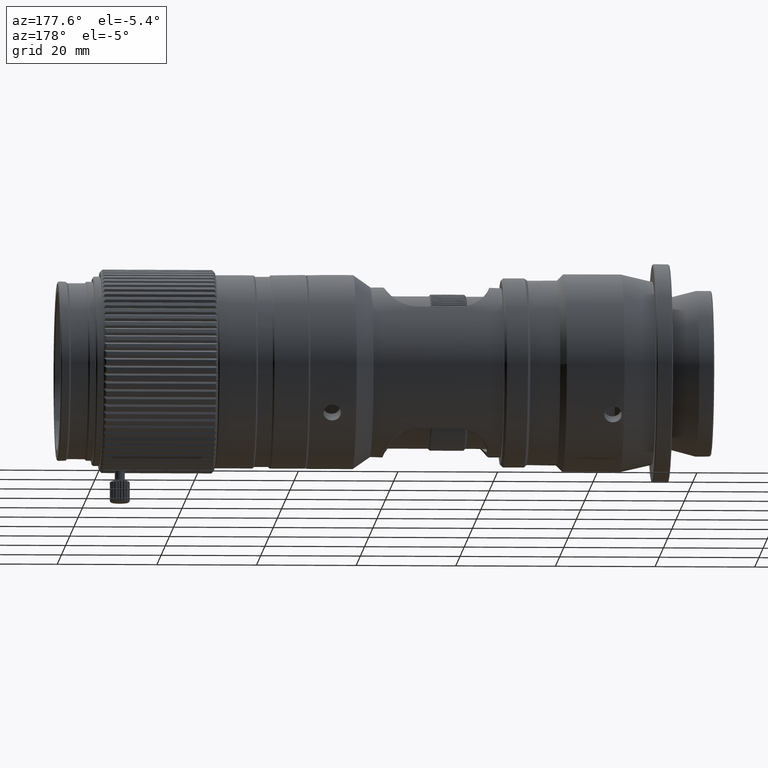
[diagram: clean part render]
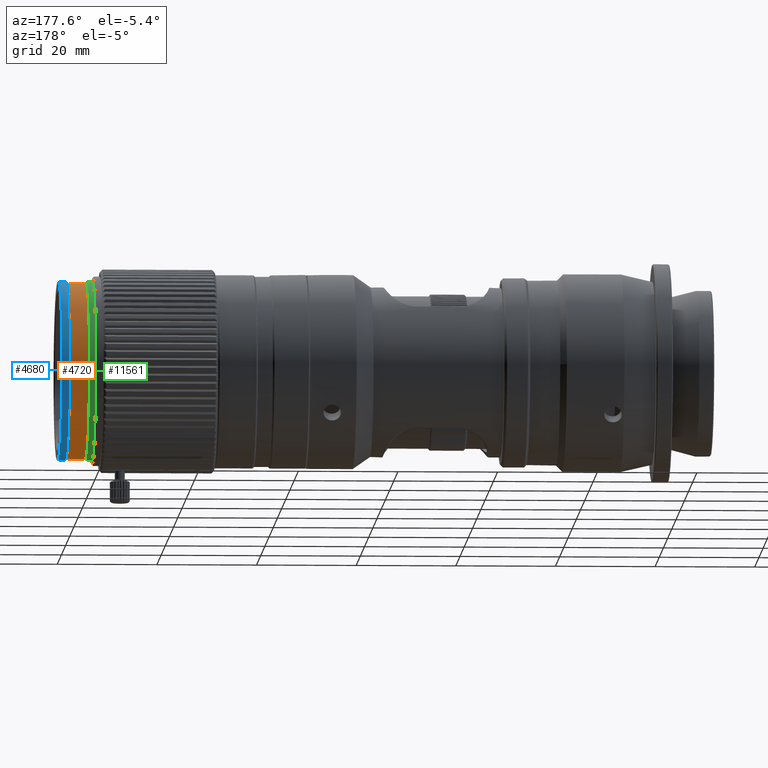
[diagram: same view with three faces highlighted in distinct colors, each labeled with its STEP entity id]
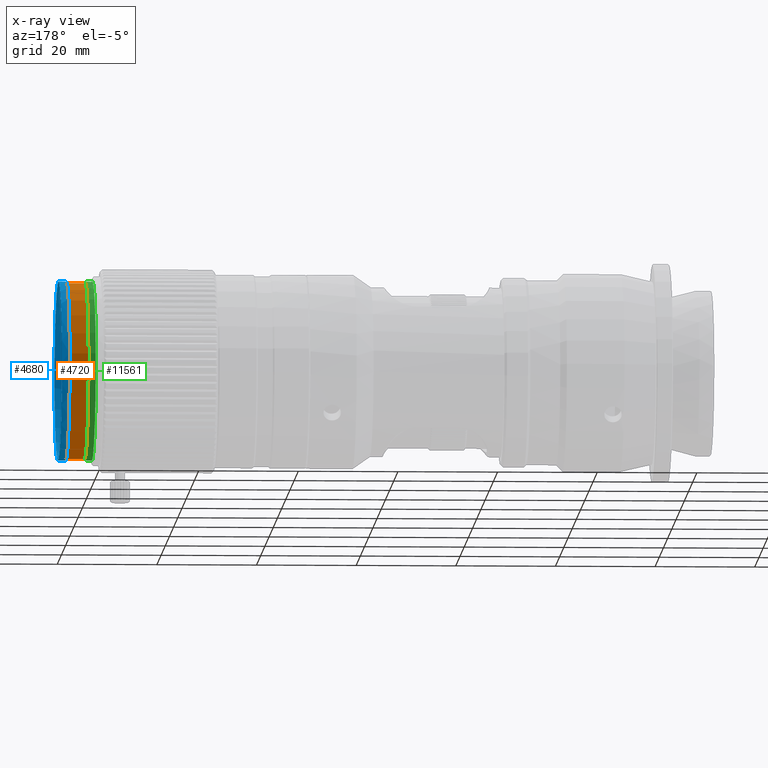
[diagram: x-ray of the same camera — body ghosted, the three highlighted faces saturated]
A machine part, auxiliary view with three faces highlighted in distinct colors.
The next image is the same camera in x-ray (body ghosted, the three faces saturated) — at least one of them is partly hidden behind the body in this view.
Their STEP definitions:

[orange] entity #4720 — the highlighted cylindrical surface (bore or boss wall) has radius 17.7 mm, axis along (-1, 0, -0).
#123 = ORIENTED_EDGE ( 'NONE', *, *, #32925, .T. ) ;
#931 = DIRECTION ( 'NONE',  ( 0.000000000000000000, -0.8303097482396866180, -0.5573021819248046294 ) ) ;
#933 = DIRECTION ( 'NONE',  ( 1.000000000000000000, -3.500039099931485001E-16, 6.331476969426725005E-22 ) ) ;
#3634 = DIRECTION ( 'NONE',  ( 0.000000000000000000, 0.8303097482396867290, 0.5573021819248045183 ) ) ;
#4720 = ADVANCED_FACE ( 'NONE', ( #25307, #6547 ), #19703, .T. ) ;
#6547 = FACE_OUTER_BOUND ( 'NONE', #26064, .T. ) ;
#8898 = CARTESIAN_POINT ( 'NONE',  ( 122.4581265426769505, 26.11023935412955765, 15.71905592086952907 ) ) ;
#12180 = CIRCLE ( 'NONE', #21151, 17.69999995054272546 ) ;
#13809 = CARTESIAN_POINT ( 'NONE',  ( 122.4581265426769505, 40.80672185690723808, 25.58330451337597822 ) ) ;
#13874 = EDGE_CURVE ( 'NONE', #32387, #32387, #17031, .T. ) ;
#16403 = CARTESIAN_POINT ( 'NONE',  ( 118.9581265427917316, 11.41375685135195894, 5.854807328363134999 ) ) ;
#17031 = CIRCLE ( 'NONE', #30471, 17.69999995054282493 ) ;
#17065 = DIRECTION ( 'NONE',  ( -1.000000000000000000, 3.500039099931485001E-16, -6.331476969426725005E-22 ) ) ;
#19525 = CARTESIAN_POINT ( 'NONE',  ( 86.65120269635323780, 26.11023935412956476, 15.71905592086952907 ) ) ;
#19591 = DIRECTION ( 'NONE',  ( 1.000000000000000000, -3.500039099931485001E-16, 6.331476969426725005E-22 ) ) ;
#19703 = CYLINDRICAL_SURFACE ( 'NONE', #22555, 17.69999995054272546 ) ;
#19870 = CARTESIAN_POINT ( 'NONE',  ( 118.9581265427917316, 26.11023935412955765, 15.71905592086952907 ) ) ;
#21151 = AXIS2_PLACEMENT_3D ( 'NONE', #19870, #933, #28109 ) ;
#22555 = AXIS2_PLACEMENT_3D ( 'NONE', #19525, #17065, #931 ) ;
#25307 = FACE_OUTER_BOUND ( 'NONE', #29471, .T. ) ;
#26064 = EDGE_LOOP ( 'NONE', ( #123 ) ) ;
#26578 = VERTEX_POINT ( 'NONE', #16403 ) ;
#28109 = DIRECTION ( 'NONE',  ( 0.000000000000000000, -0.8303097482396866180, -0.5573021819248046294 ) ) ;
#29471 = EDGE_LOOP ( 'NONE', ( #31997 ) ) ;
#30471 = AXIS2_PLACEMENT_3D ( 'NONE', #8898, #19591, #3634 ) ;
#31997 = ORIENTED_EDGE ( 'NONE', *, *, #13874, .F. ) ;
#32387 = VERTEX_POINT ( 'NONE', #13809 ) ;
#32925 = EDGE_CURVE ( 'NONE', #26578, #26578, #12180, .T. ) ;

[blue] entity #4680 — the highlighted cylindrical surface (bore or boss wall) has radius 18 mm, axis along (-1, 0, -0).
#265 = DIRECTION ( 'NONE',  ( 0.000000000000000000, -0.8303097482396866180, -0.5573021819248045183 ) ) ;
#899 = EDGE_CURVE ( 'NONE', #19974, #19974, #14919, .T. ) ;
#4102 = CARTESIAN_POINT ( 'NONE',  ( 124.2581265426550772, 26.11023935412955765, 15.71905592086952907 ) ) ;
#4293 = AXIS2_PLACEMENT_3D ( 'NONE', #22914, #9415, #27998 ) ;
#4680 = ADVANCED_FACE ( 'NONE', ( #8157, #18848 ), #29526, .T. ) ;
#4766 = EDGE_CURVE ( 'NONE', #15763, #15763, #27581, .T. ) ;
#7536 = EDGE_LOOP ( 'NONE', ( #23432 ) ) ;
#8157 = FACE_OUTER_BOUND ( 'NONE', #30031, .T. ) ;
#9415 = DIRECTION ( 'NONE',  ( 1.000000000000000000, -3.500039099931485001E-16, 6.331476969426725005E-22 ) ) ;
#10250 = AXIS2_PLACEMENT_3D ( 'NONE', #4102, #14787, #25477 ) ;
#14787 = DIRECTION ( 'NONE',  ( 1.000000000000000000, -3.500039099931485001E-16, 6.331476969426725005E-22 ) ) ;
#14919 = CIRCLE ( 'NONE', #4293, 17.99999995054291446 ) ;
#15763 = VERTEX_POINT ( 'NONE', #33967 ) ;
#18848 = FACE_OUTER_BOUND ( 'NONE', #7536, .T. ) ;
#19589 = ORIENTED_EDGE ( 'NONE', *, *, #4766, .F. ) ;
#19974 = VERTEX_POINT ( 'NONE', #30659 ) ;
#22914 = CARTESIAN_POINT ( 'NONE',  ( 122.7581265426770329, 26.11023935412955765, 15.71905592086952907 ) ) ;
#23432 = ORIENTED_EDGE ( 'NONE', *, *, #899, .T. ) ;
#24275 = CARTESIAN_POINT ( 'NONE',  ( 86.65120269635323780, 26.11023935412956476, 15.71905592086952907 ) ) ;
#25477 = DIRECTION ( 'NONE',  ( 0.000000000000000000, -0.8303097482396866180, -0.5573021819248045183 ) ) ;
#27581 = CIRCLE ( 'NONE', #10250, 17.99999995054291446 ) ;
#27998 = DIRECTION ( 'NONE',  ( 0.000000000000000000, -0.8303097482396866180, -0.5573021819248045183 ) ) ;
#28719 = AXIS2_PLACEMENT_3D ( 'NONE', #24275, #32326, #265 ) ;
#29526 = CYLINDRICAL_SURFACE ( 'NONE', #28719, 17.99999995054291446 ) ;
#30031 = EDGE_LOOP ( 'NONE', ( #19589 ) ) ;
#30659 = CARTESIAN_POINT ( 'NONE',  ( 122.7581265426770329, 11.16466392687989639, 5.687616673785589327 ) ) ;
#32326 = DIRECTION ( 'NONE',  ( -1.000000000000000000, 3.500039099931485001E-16, -6.331476969426725005E-22 ) ) ;
#33967 = CARTESIAN_POINT ( 'NONE',  ( 124.2581265426550772, 11.16466392687989639, 5.687616673785589327 ) ) ;

[green] entity #11561 — the highlighted cylindrical surface (bore or boss wall) has radius 18 mm, axis along (-1, 0, -0).
#1176 = CYLINDRICAL_SURFACE ( 'NONE', #3343, 17.99999995054291446 ) ;
#1709 = EDGE_CURVE ( 'NONE', #9112, #9112, #11134, .T. ) ;
#3343 = AXIS2_PLACEMENT_3D ( 'NONE', #20450, #9753, #19925 ) ;
#5315 = DIRECTION ( 'NONE',  ( 0.000000000000000000, -0.8303097482396866180, -0.5573021819248045183 ) ) ;
#6183 = DIRECTION ( 'NONE',  ( 0.000000000000000000, -0.8303097482396866180, -0.5573021819248045183 ) ) ;
#6796 = FACE_OUTER_BOUND ( 'NONE', #9592, .T. ) ;
#8627 = DIRECTION ( 'NONE',  ( 1.000000000000000000, -3.500039099931485001E-16, 6.331476969426725005E-22 ) ) ;
#9112 = VERTEX_POINT ( 'NONE', #9636 ) ;
#9592 = EDGE_LOOP ( 'NONE', ( #11449 ) ) ;
#9636 = CARTESIAN_POINT ( 'NONE',  ( 117.4581265427917174, 11.16466392687989639, 5.687616673785589327 ) ) ;
#9753 = DIRECTION ( 'NONE',  ( -1.000000000000000000, 3.500039099931485001E-16, -6.331476969426725005E-22 ) ) ;
#10450 = CARTESIAN_POINT ( 'NONE',  ( 118.6581265427917344, 11.16466392687989639, 5.687616673785589327 ) ) ;
#11134 = CIRCLE ( 'NONE', #34636, 17.99999995054291446 ) ;
#11449 = ORIENTED_EDGE ( 'NONE', *, *, #33072, .F. ) ;
#11561 = ADVANCED_FACE ( 'NONE', ( #6796, #25707 ), #1176, .T. ) ;
#14228 = CARTESIAN_POINT ( 'NONE',  ( 117.4581265427917174, 26.11023935412955765, 15.71905592086952907 ) ) ;
#15803 = EDGE_LOOP ( 'NONE', ( #19331 ) ) ;
#19331 = ORIENTED_EDGE ( 'NONE', *, *, #1709, .F. ) ;
#19925 = DIRECTION ( 'NONE',  ( 0.000000000000000000, -0.8303097482396866180, -0.5573021819248045183 ) ) ;
#20450 = CARTESIAN_POINT ( 'NONE',  ( 86.65120269635323780, 26.11023935412956476, 15.71905592086952907 ) ) ;
#23399 = AXIS2_PLACEMENT_3D ( 'NONE', #32621, #8627, #5315 ) ;
#23774 = VERTEX_POINT ( 'NONE', #10450 ) ;
#25707 = FACE_OUTER_BOUND ( 'NONE', #15803, .T. ) ;
#32621 = CARTESIAN_POINT ( 'NONE',  ( 118.6581265427917344, 26.11023935412955765, 15.71905592086952907 ) ) ;
#32790 = DIRECTION ( 'NONE',  ( -1.000000000000000000, 3.500039099931485001E-16, -6.331476969426725005E-22 ) ) ;
#32896 = CIRCLE ( 'NONE', #23399, 17.99999995054291446 ) ;
#33072 = EDGE_CURVE ( 'NONE', #23774, #23774, #32896, .T. ) ;
#34636 = AXIS2_PLACEMENT_3D ( 'NONE', #14228, #32790, #6183 ) ;